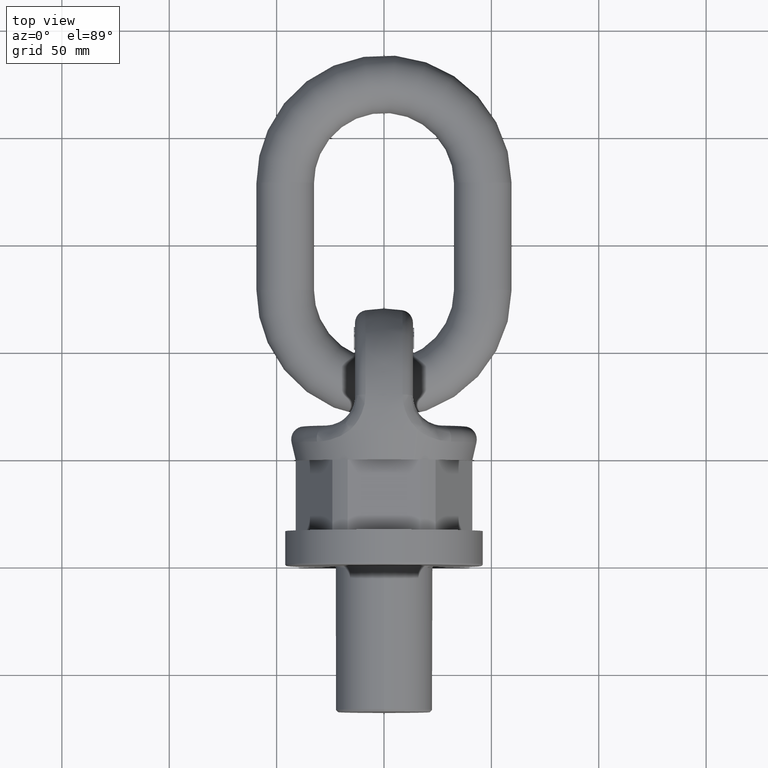
[diagram: clean part render]
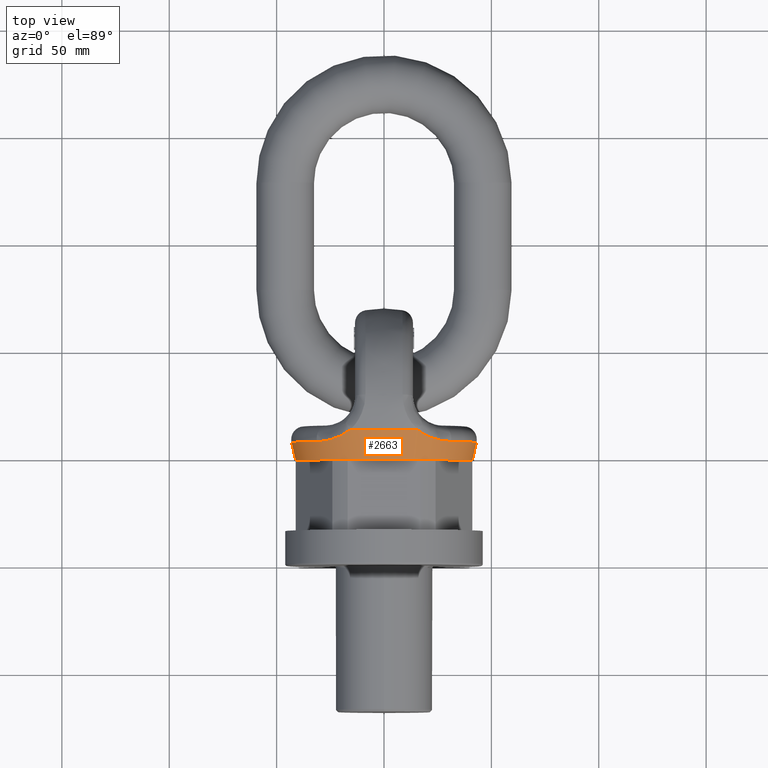
[diagram: same view with one face highlighted and labeled with its STEP entity id]
A machine part, top view. The second image highlights one B-rep face of the part: STEP entity #2663.
In plain terms, the highlighted conical surface has half-angle 14.152 deg.
Its self-contained STEP definition (entity closure, byte-faithful):
#353=B_SPLINE_CURVE_WITH_KNOTS('',3,(#7050,#7051,#7052,#7053,#7054,#7055),
 .UNSPECIFIED.,.F.,.F.,(4,2,4),(0.,0.5,1.),.UNSPECIFIED.);
#354=B_SPLINE_CURVE_WITH_KNOTS('',3,(#7057,#7058,#7059,#7060,#7061,#7062),
 .UNSPECIFIED.,.F.,.F.,(4,2,4),(0.,0.5,1.),.UNSPECIFIED.);
#355=B_SPLINE_CURVE_WITH_KNOTS('',3,(#7066,#7067,#7068,#7069,#7070,#7071),
 .UNSPECIFIED.,.F.,.F.,(4,2,4),(0.,0.5,1.),.UNSPECIFIED.);
#356=B_SPLINE_CURVE_WITH_KNOTS('',3,(#7072,#7073,#7074,#7075,#7076,#7077),
 .UNSPECIFIED.,.F.,.F.,(4,2,4),(0.,0.5,1.),.UNSPECIFIED.);
#1787=CONICAL_SURFACE('',#5653,41.1362066797608,14.1515047841339);
#2663=ADVANCED_FACE('',(#3008,#3009),#1787,.T.);
#3008=FACE_BOUND('',#3098,.T.);
#3009=FACE_BOUND('',#3099,.T.);
#3098=EDGE_LOOP('',(#3522));
#3099=EDGE_LOOP('',(#3523,#3524,#3525,#3526,#3527,#3528,#3529,#3530));
#3522=ORIENTED_EDGE('',*,*,#5066,.F.);
#3523=ORIENTED_EDGE('',*,*,#5067,.T.);
#3524=ORIENTED_EDGE('',*,*,#5058,.T.);
#3525=ORIENTED_EDGE('',*,*,#5068,.T.);
#3526=ORIENTED_EDGE('',*,*,#5069,.T.);
#3527=ORIENTED_EDGE('',*,*,#5070,.T.);
#3528=ORIENTED_EDGE('',*,*,#5062,.T.);
#3529=ORIENTED_EDGE('',*,*,#5071,.T.);
#3530=ORIENTED_EDGE('',*,*,#5072,.T.);
#4645=VERTEX_POINT('',#7011);
#4646=VERTEX_POINT('',#7012);
#4649=VERTEX_POINT('',#7028);
#4650=VERTEX_POINT('',#7030);
#4653=VERTEX_POINT('',#7048);
#4654=VERTEX_POINT('',#7056);
#4655=VERTEX_POINT('',#7063);
#4656=VERTEX_POINT('',#7065);
#4657=VERTEX_POINT('',#7078);
#5058=EDGE_CURVE('',#4645,#4646,#5553,.T.);
#5062=EDGE_CURVE('',#4650,#4649,#5555,.T.);
#5066=EDGE_CURVE('',#4653,#4653,#5557,.T.);
#5067=EDGE_CURVE('',#4654,#4645,#353,.T.);
#5068=EDGE_CURVE('',#4646,#4655,#354,.T.);
#5069=EDGE_CURVE('',#4655,#4656,#5558,.T.);
#5070=EDGE_CURVE('',#4656,#4650,#355,.T.);
#5071=EDGE_CURVE('',#4649,#4657,#356,.T.);
#5072=EDGE_CURVE('',#4657,#4654,#5559,.T.);
#5553=CIRCLE('',#5644,44.6040210296982);
#5555=CIRCLE('',#5646,44.6040210296982);
#5557=CIRCLE('',#5649,41.1362066797608);
#5558=CIRCLE('',#5651,43.2877245192613);
#5559=CIRCLE('',#5652,43.2877245192613);
#5644=AXIS2_PLACEMENT_3D('',#7010,#5959,#5960);
#5646=AXIS2_PLACEMENT_3D('',#7029,#5963,#5964);
#5649=AXIS2_PLACEMENT_3D('',#7047,#5969,#5970);
#5651=AXIS2_PLACEMENT_3D('',#7064,#5973,#5974);
#5652=AXIS2_PLACEMENT_3D('',#7079,#5975,#5976);
#5653=AXIS2_PLACEMENT_3D('',#7080,#5977,#5978);
#5959=DIRECTION('',(0.,-1.,0.));
#5960=DIRECTION('',(0.,0.,-1.));
#5963=DIRECTION('',(0.,-1.,0.));
#5964=DIRECTION('',(0.,0.,-1.));
#5969=DIRECTION('',(0.,-1.,0.));
#5970=DIRECTION('',(0.,0.,-1.));
#5973=DIRECTION('',(0.,-1.,0.));
#5974=DIRECTION('',(0.,0.,-1.));
#5975=DIRECTION('',(0.,-1.,0.));
#5976=DIRECTION('',(-2.34291072916505E-15,0.,1.));
#5977=DIRECTION('',(0.,1.,0.));
#5978=DIRECTION('',(0.,-2.36600490349064E-16,1.));
#7010=CARTESIAN_POINT('',(0.,62.7536091130426,0.));
#7011=CARTESIAN_POINT('',(-15.7785054320884,62.7536091130426,-41.7199887146116));
#7012=CARTESIAN_POINT('',(15.7785054320885,62.7536091130426,-41.7199887146116));
#7028=CARTESIAN_POINT('',(-15.7785054320886,62.7536091130426,41.7199887146115));
#7029=CARTESIAN_POINT('',(0.,62.7536091130426,0.));
#7030=CARTESIAN_POINT('',(15.7785054320885,62.7536091130426,41.7199887146116));
#7047=CARTESIAN_POINT('',(0.,49.,0.));
#7048=CARTESIAN_POINT('',(0.,49.,-41.1362066797608));
#7050=CARTESIAN_POINT('',(-31.1922745684475,57.5330794495273,-30.0144815264571));
#7051=CARTESIAN_POINT('',(-28.8200770798436,57.5330794495273,-32.4797660035483));
#7052=CARTESIAN_POINT('',(-26.2281895916773,57.8552211187232,-34.6962955908888));
#7053=CARTESIAN_POINT('',(-20.9018926076617,59.4991765414386,-38.6132982412755));
#7054=CARTESIAN_POINT('',(-18.2093249265365,60.8089074692508,-40.2764223259881));
#7055=CARTESIAN_POINT('',(-15.7785054320884,62.7536091130426,-41.7199887146116));
#7056=CARTESIAN_POINT('',(-31.1922745684475,57.5330794495273,-30.0144815264571));
#7057=CARTESIAN_POINT('',(15.7785054320885,62.7536091130426,-41.7199887146116));
#7058=CARTESIAN_POINT('',(18.2169836139494,60.8027803742381,-40.2718741381216));
#7059=CARTESIAN_POINT('',(20.9172362149262,59.4919223788236,-38.6035820851585));
#7060=CARTESIAN_POINT('',(26.2545613026524,57.849619660177,-34.6753216617466));
#7061=CARTESIAN_POINT('',(28.8155881200077,57.5330794495273,-32.4844311138753));
#7062=CARTESIAN_POINT('',(31.1922745684476,57.5330794495273,-30.014481526457));
#7063=CARTESIAN_POINT('',(31.1922745684476,57.5330794495273,-30.014481526457));
#7064=CARTESIAN_POINT('',(0.,57.5330794495273,0.));
#7065=CARTESIAN_POINT('',(31.1922745684476,57.5330794495273,30.014481526457));
#7066=CARTESIAN_POINT('',(31.1922745684476,57.5330794495273,30.014481526457));
#7067=CARTESIAN_POINT('',(28.8200770798437,57.5330794495273,32.4797660035482));
#7068=CARTESIAN_POINT('',(26.2281895916774,57.8552211187232,34.6962955908888));
#7069=CARTESIAN_POINT('',(20.9018926076618,59.4991765414386,38.6132982412754));
#7070=CARTESIAN_POINT('',(18.2093249265366,60.8089074692508,40.276422325988));
#7071=CARTESIAN_POINT('',(15.7785054320885,62.7536091130426,41.7199887146116));
#7072=CARTESIAN_POINT('',(-15.7785054320886,62.7536091130426,41.7199887146115));
#7073=CARTESIAN_POINT('',(-18.2169836139495,60.8027803742381,40.2718741381215));
#7074=CARTESIAN_POINT('',(-20.9172362149263,59.4919223788236,38.6035820851584));
#7075=CARTESIAN_POINT('',(-26.2545613026525,57.849619660177,34.6753216617466));
#7076=CARTESIAN_POINT('',(-28.8155881200078,57.5330794495273,32.4844311138752));
#7077=CARTESIAN_POINT('',(-31.1922745684476,57.5330794495273,30.014481526457));
#7078=CARTESIAN_POINT('',(-31.1922745684476,57.5330794495273,30.014481526457));
#7079=CARTESIAN_POINT('',(0.,57.5330794495273,0.));
#7080=CARTESIAN_POINT('',(0.,49.,0.));